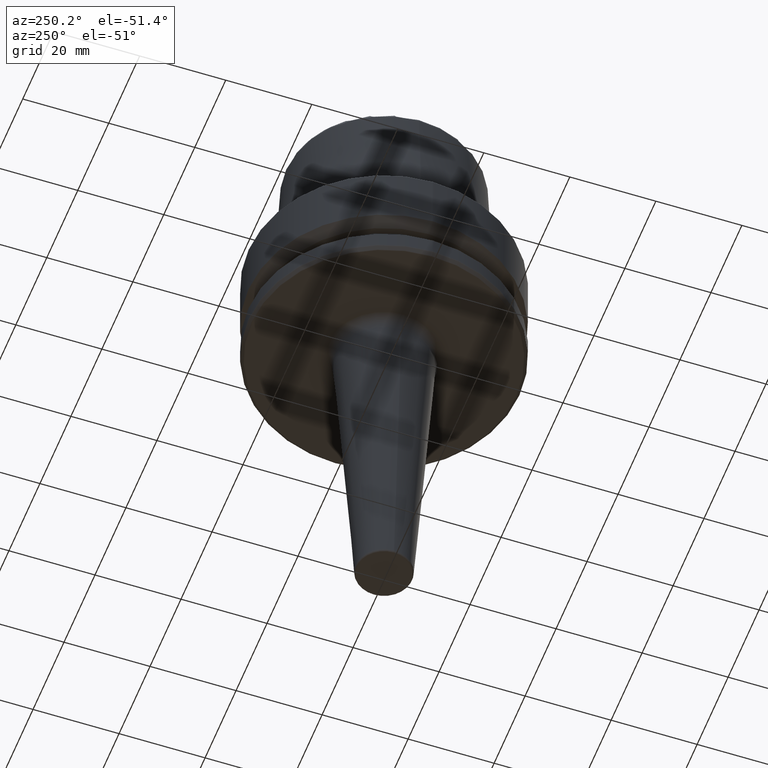
[diagram: clean part render]
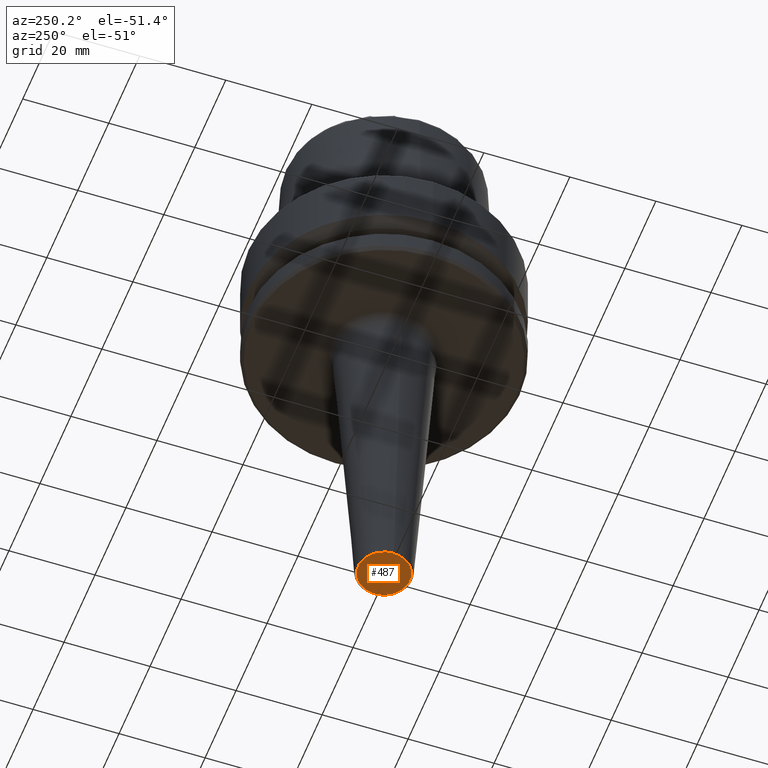
[diagram: same view with one face highlighted and labeled with its STEP entity id]
A machine part, auxiliary view. The second image highlights one B-rep face of the part: STEP entity #487.
In plain terms, the highlighted planar face has unit normal (-0, 0, -1).
Its self-contained STEP definition (entity closure, byte-faithful):
#25 = DIRECTION ( 'NONE',  ( -0.0000000000000000000, -0.0000000000000000000, -1.000000000000000000 ) ) ;
#29 = ORIENTED_EDGE ( 'NONE', *, *, #852, .T. ) ;
#37 = CARTESIAN_POINT ( 'NONE',  ( 0.0000000000000000000, 0.0000000000000000000, -101.0000000000000000 ) ) ;
#60 = VERTEX_POINT ( 'NONE', #143 ) ;
#143 = CARTESIAN_POINT ( 'NONE',  ( 6.032223454054236100, 7.692826744700569100E-016, -101.0000000000000000 ) ) ;
#196 = FACE_OUTER_BOUND ( 'NONE', #1079, .T. ) ;
#253 = DIRECTION ( 'NONE',  ( -1.000000000000000000, 0.0000000000000000000, 0.0000000000000000000 ) ) ;
#425 = ORIENTED_EDGE ( 'NONE', *, *, #1145, .T. ) ;
#462 = AXIS2_PLACEMENT_3D ( 'NONE', #740, #830, #253 ) ;
#487 = ADVANCED_FACE ( 'NONE', ( #196 ), #1253, .T. ) ;
#506 = CARTESIAN_POINT ( 'NONE',  ( -6.032223454054236100, 0.0000000000000000000, -101.0000000000000000 ) ) ;
#529 = VERTEX_POINT ( 'NONE', #506 ) ;
#598 = CIRCLE ( 'NONE', #765, 6.032223454054236100 ) ;
#707 = AXIS2_PLACEMENT_3D ( 'NONE', #971, #883, #965 ) ;
#740 = CARTESIAN_POINT ( 'NONE',  ( 0.0000000000000000000, 0.0000000000000000000, -101.0000000000000000 ) ) ;
#765 = AXIS2_PLACEMENT_3D ( 'NONE', #37, #25, #909 ) ;
#830 = DIRECTION ( 'NONE',  ( -0.0000000000000000000, -0.0000000000000000000, -1.000000000000000000 ) ) ;
#852 = EDGE_CURVE ( 'NONE', #529, #60, #1210, .T. ) ;
#883 = DIRECTION ( 'NONE',  ( -0.0000000000000000000, 0.0000000000000000000, -1.000000000000000000 ) ) ;
#909 = DIRECTION ( 'NONE',  ( -1.000000000000000000, 0.0000000000000000000, 0.0000000000000000000 ) ) ;
#965 = DIRECTION ( 'NONE',  ( -1.000000000000000000, 0.0000000000000000000, 0.0000000000000000000 ) ) ;
#971 = CARTESIAN_POINT ( 'NONE',  ( 0.0000000000000000000, 0.0000000000000000000, -101.0000000000000000 ) ) ;
#1079 = EDGE_LOOP ( 'NONE', ( #29, #425 ) ) ;
#1145 = EDGE_CURVE ( 'NONE', #60, #529, #598, .T. ) ;
#1210 = CIRCLE ( 'NONE', #462, 6.032223454054236100 ) ;
#1253 = PLANE ( 'NONE',  #707 ) ;